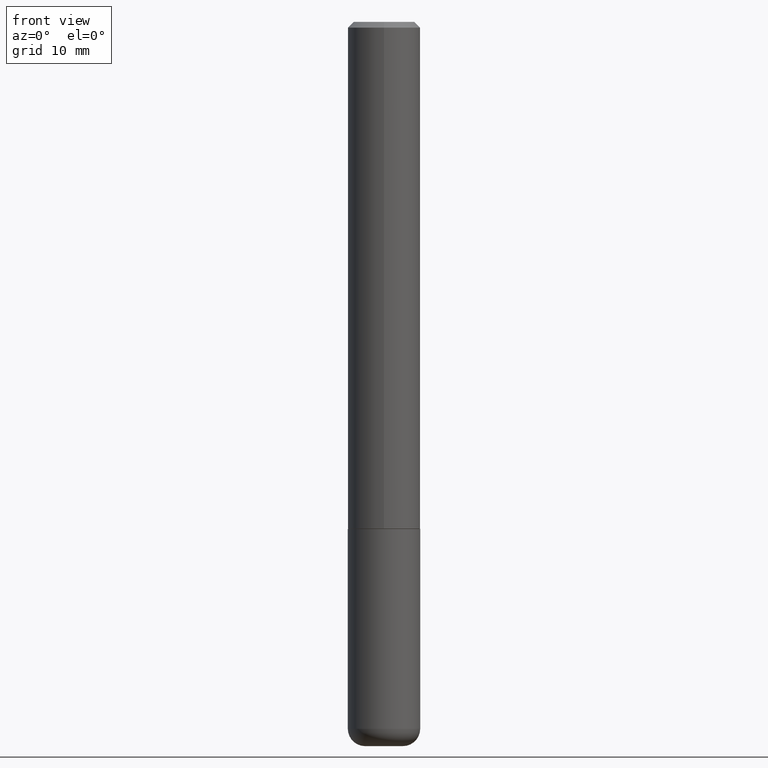
[diagram: clean part render]
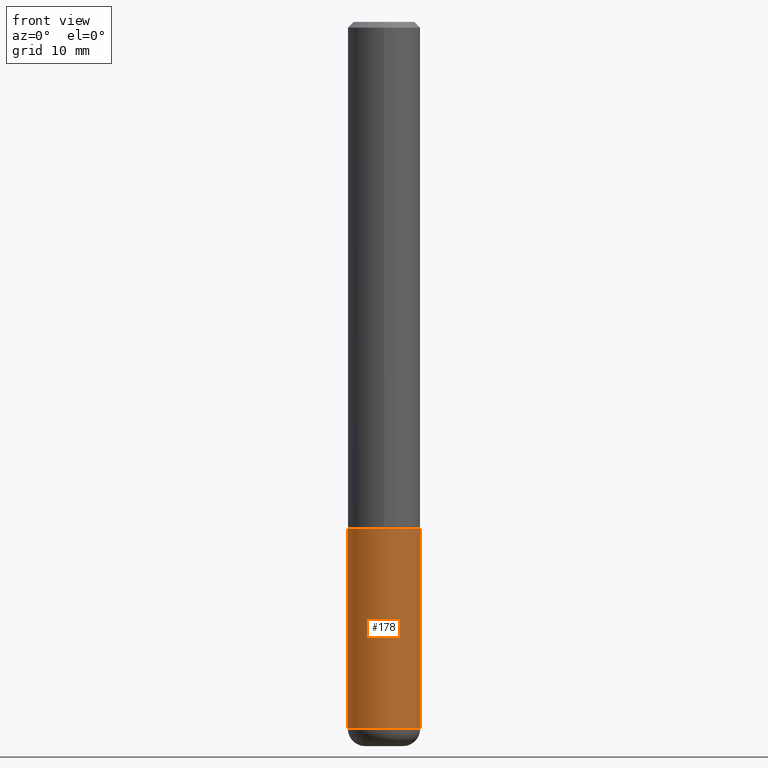
[diagram: same view with one face highlighted and labeled with its STEP entity id]
A machine part, front view. The second image highlights one B-rep face of the part: STEP entity #178.
In plain terms, the highlighted cylindrical surface (edge-blend (fillet) strip) has radius 3.175 mm, axis along (-0, 0, 1).
Its self-contained STEP definition (entity closure, byte-faithful):
#6 = AXIS2_PLACEMENT_3D ( 'NONE', #208, #298, #14 ) ;
#14 = DIRECTION ( 'NONE',  ( 1.000000000000000000, -6.982962677686266711E-15, 4.876176775795935793E-29 ) ) ;
#32 = EDGE_CURVE ( 'NONE', #219, #47, #387, .T. ) ;
#40 = EDGE_LOOP ( 'NONE', ( #141, #324, #123, #69 ) ) ;
#46 = CARTESIAN_POINT ( 'NONE',  ( 0.1250000000000000000, -8.728703347107833388E-16, 6.095220969744919741E-30 ) ) ;
#47 = VERTEX_POINT ( 'NONE', #57 ) ;
#50 = DIRECTION ( 'NONE',  ( 1.000000000000000000, -6.982962677686262766E-15, 0.000000000000000000 ) ) ;
#57 = CARTESIAN_POINT ( 'NONE',  ( 0.1249999999999999861, -9.392084801488058387E-15, -2.440000000000000391 ) ) ;
#69 = ORIENTED_EDGE ( 'NONE', *, *, #322, .F. ) ;
#71 = EDGE_CURVE ( 'NONE', #219, #374, #350, .T. ) ;
#83 = FACE_OUTER_BOUND ( 'NONE', #40, .T. ) ;
#98 = CIRCLE ( 'NONE', #235, 0.1250000000000000000 ) ;
#104 = CYLINDRICAL_SURFACE ( 'NONE', #6, 0.1250000000000000000 ) ;
#123 = ORIENTED_EDGE ( 'NONE', *, *, #262, .T. ) ;
#125 = CARTESIAN_POINT ( 'NONE',  ( 4.279570410823989044E-29, -6.110092342975505460E-15, -1.750000000000000222 ) ) ;
#132 = DIRECTION ( 'NONE',  ( -2.445468806185136597E-29, 3.491481338843145583E-15, 1.000000000000000000 ) ) ;
#133 = DIRECTION ( 'NONE',  ( 1.000000000000000000, -6.982962677686262766E-15, 0.000000000000000000 ) ) ;
#141 = ORIENTED_EDGE ( 'NONE', *, *, #71, .F. ) ;
#149 = LINE ( 'NONE', #46, #356 ) ;
#150 = CARTESIAN_POINT ( 'NONE',  ( -0.1250000000000000000, 8.881784197001252323E-16, -6.148668862818632227E-30 ) ) ;
#168 = CARTESIAN_POINT ( 'NONE',  ( -0.1250000000000000000, -6.426474985176265022E-15, -1.750000000000000222 ) ) ;
#177 = CARTESIAN_POINT ( 'NONE',  ( 0.1250000000000000000, -6.982962677686288010E-15, -1.750000000000000222 ) ) ;
#178 = ADVANCED_FACE ( 'NONE', ( #83 ), #104, .T. ) ;
#186 = DIRECTION ( 'NONE',  ( -2.445468806185136877E-29, 3.491481338843145188E-15, 1.000000000000000000 ) ) ;
#198 = DIRECTION ( 'NONE',  ( -2.445468806185136597E-29, 3.491481338843145583E-15, 1.000000000000000000 ) ) ;
#208 = CARTESIAN_POINT ( 'NONE',  ( 0.000000000000000000, 0.000000000000000000, 0.000000000000000000 ) ) ;
#209 = VERTEX_POINT ( 'NONE', #177 ) ;
#219 = VERTEX_POINT ( 'NONE', #244 ) ;
#235 = AXIS2_PLACEMENT_3D ( 'NONE', #125, #132, #133 ) ;
#244 = CARTESIAN_POINT ( 'NONE',  ( -0.1249999999999999861, -7.631036047077151393E-15, -2.440000000000000391 ) ) ;
#262 = EDGE_CURVE ( 'NONE', #47, #209, #149, .T. ) ;
#298 = DIRECTION ( 'NONE',  ( -2.445468806185136597E-29, 3.491481338843145583E-15, 1.000000000000000000 ) ) ;
#313 = CARTESIAN_POINT ( 'NONE',  ( 5.966943887091733341E-29, -8.519214466777275048E-15, -2.440000000000000391 ) ) ;
#322 = EDGE_CURVE ( 'NONE', #374, #209, #98, .T. ) ;
#323 = VECTOR ( 'NONE', #186, 39.37007874015748143 ) ;
#324 = ORIENTED_EDGE ( 'NONE', *, *, #32, .T. ) ;
#336 = DIRECTION ( 'NONE',  ( -2.445468806185136877E-29, 3.491481338843145188E-15, 1.000000000000000000 ) ) ;
#350 = LINE ( 'NONE', #150, #323 ) ;
#356 = VECTOR ( 'NONE', #336, 39.37007874015748143 ) ;
#374 = VERTEX_POINT ( 'NONE', #168 ) ;
#380 = AXIS2_PLACEMENT_3D ( 'NONE', #313, #198, #50 ) ;
#387 = CIRCLE ( 'NONE', #380, 0.1250000000000000000 ) ;